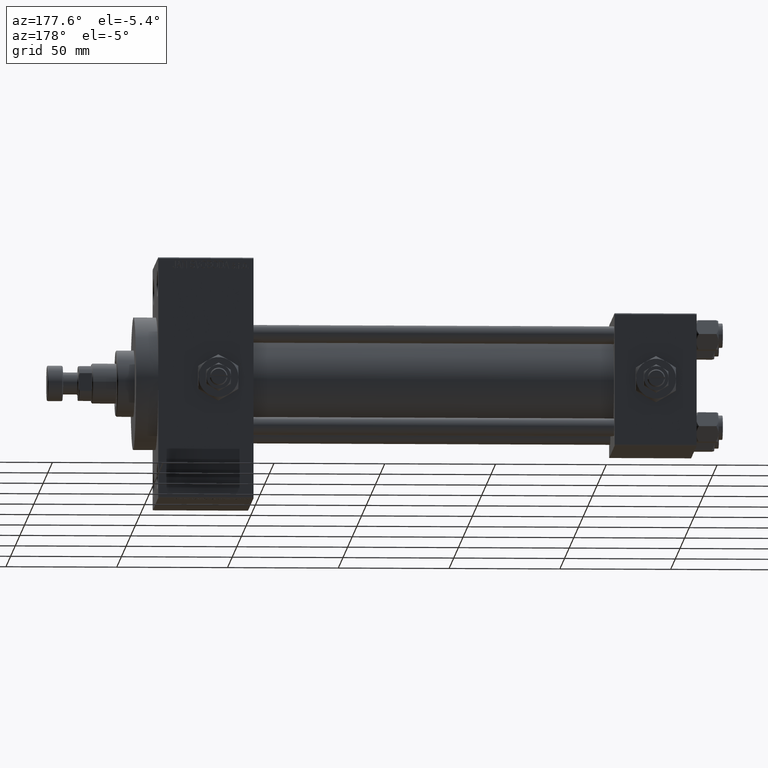
[diagram: clean part render]
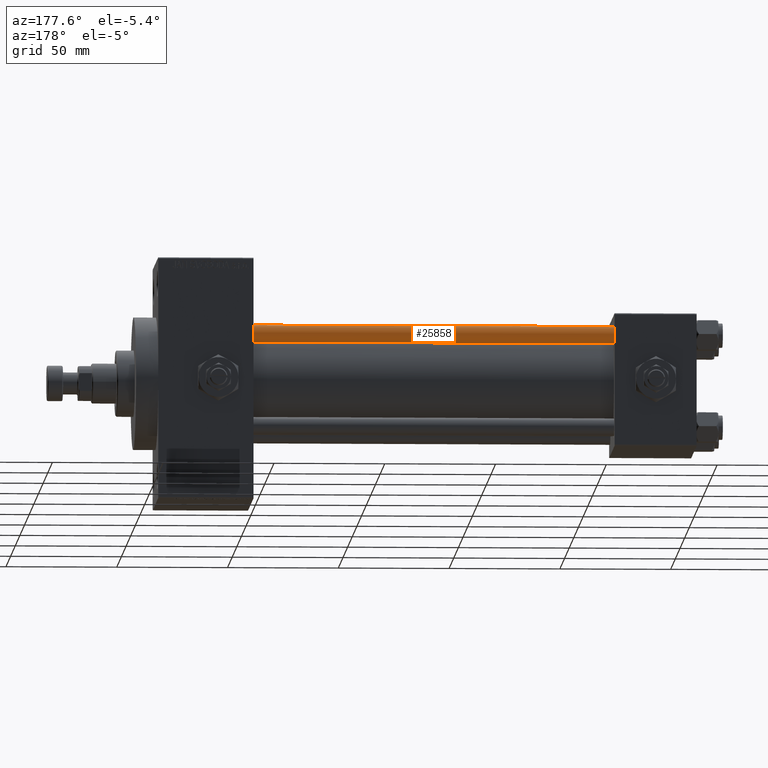
[diagram: same view with one face highlighted and labeled with its STEP entity id]
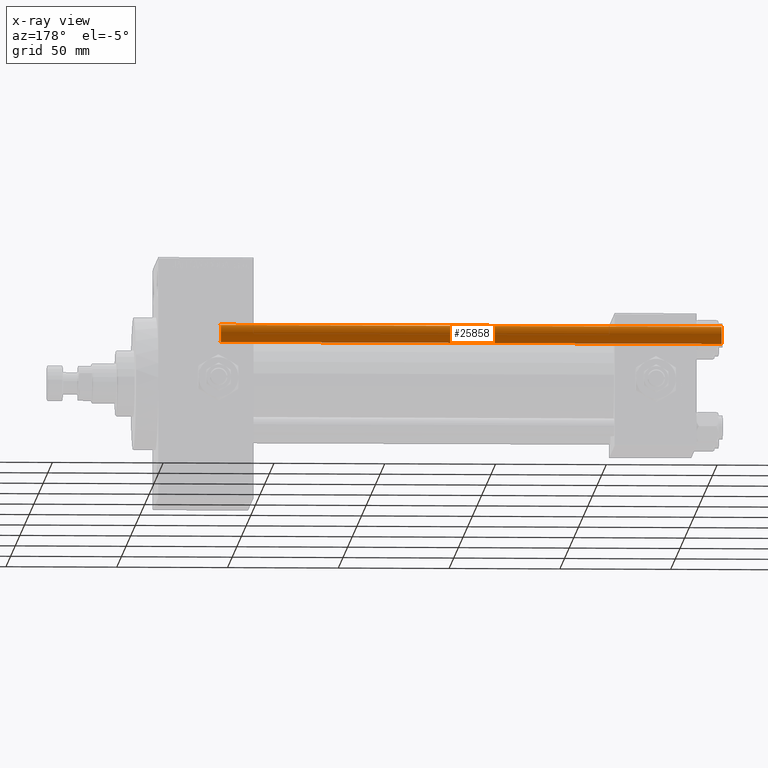
[diagram: x-ray of the same camera — body ghosted, the highlighted face saturated]
A machine part, auxiliary view. The second image highlights one B-rep face of the part: STEP entity #25858.
The next image is the same camera in x-ray: the body ghosted, the highlighted face saturated — about 0% of this face is hidden behind the body in this view.
In plain terms, the highlighted cylindrical surface (edge-blend (fillet) strip) has radius 4 mm, axis along (-1, -0, 0).
Its self-contained STEP definition (entity closure, byte-faithful):
#448 = EDGE_LOOP ( 'NONE', ( #15467, #35324, #43766, #27241 ) ) ;
#1921 = FACE_OUTER_BOUND ( 'NONE', #448, .T. ) ;
#2386 = LINE ( 'NONE', #14707, #40868 ) ;
#3695 = EDGE_CURVE ( 'NONE', #11700, #38206, #2386, .T. ) ;
#5003 = CARTESIAN_POINT ( 'NONE',  ( 0.000000000000000000, 0.000000000000000000, 0.5000000000002224887 ) ) ;
#9015 = DIRECTION ( 'NONE',  ( -0.000000000000000000, -0.000000000000000000, 1.000000000000000000 ) ) ;
#11700 = VERTEX_POINT ( 'NONE', #33463 ) ;
#14707 = CARTESIAN_POINT ( 'NONE',  ( -4.000000000000000000, 0.000000000000000000, 227.0000000000000000 ) ) ;
#15188 = VERTEX_POINT ( 'NONE', #40237 ) ;
#15467 = ORIENTED_EDGE ( 'NONE', *, *, #19456, .T. ) ;
#16744 = VERTEX_POINT ( 'NONE', #39579 ) ;
#16769 = CARTESIAN_POINT ( 'NONE',  ( 0.000000000000000000, 0.000000000000000000, 227.0000000000000000 ) ) ;
#18173 = LINE ( 'NONE', #34020, #22107 ) ;
#19456 = EDGE_CURVE ( 'NONE', #11700, #16744, #30873, .T. ) ;
#21519 = CYLINDRICAL_SURFACE ( 'NONE', #23856, 4.000000000000000000 ) ;
#22022 = AXIS2_PLACEMENT_3D ( 'NONE', #27232, #46583, #23458 ) ;
#22107 = VECTOR ( 'NONE', #26454, 1000.000000000000000 ) ;
#23458 = DIRECTION ( 'NONE',  ( 1.000000000000000000, 0.000000000000000000, 0.000000000000000000 ) ) ;
#23856 = AXIS2_PLACEMENT_3D ( 'NONE', #16769, #25285, #44147 ) ;
#24369 = DIRECTION ( 'NONE',  ( 1.000000000000000000, 0.000000000000000000, 0.000000000000000000 ) ) ;
#25285 = DIRECTION ( 'NONE',  ( -0.000000000000000000, -0.000000000000000000, -1.000000000000000000 ) ) ;
#25519 = EDGE_CURVE ( 'NONE', #15188, #38206, #32688, .T. ) ;
#25858 = ADVANCED_FACE ( 'NONE', ( #1921 ), #21519, .T. ) ;
#26454 = DIRECTION ( 'NONE',  ( -0.000000000000000000, -0.000000000000000000, -1.000000000000000000 ) ) ;
#27232 = CARTESIAN_POINT ( 'NONE',  ( 0.000000000000000000, 0.000000000000000000, 226.5000000000001421 ) ) ;
#27241 = ORIENTED_EDGE ( 'NONE', *, *, #3695, .F. ) ;
#30873 = CIRCLE ( 'NONE', #22022, 4.000000000000000000 ) ;
#31244 = CARTESIAN_POINT ( 'NONE',  ( -4.000000000000000000, 0.000000000000000000, 0.5000000000002224887 ) ) ;
#32688 = CIRCLE ( 'NONE', #37531, 4.000000000000000000 ) ;
#33463 = CARTESIAN_POINT ( 'NONE',  ( -4.000000000000000000, 0.000000000000000000, 226.5000000000001421 ) ) ;
#34020 = CARTESIAN_POINT ( 'NONE',  ( 4.000000000000000000, 4.898587196589411843E-16, 227.0000000000000000 ) ) ;
#35324 = ORIENTED_EDGE ( 'NONE', *, *, #42439, .T. ) ;
#37531 = AXIS2_PLACEMENT_3D ( 'NONE', #5003, #9015, #24369 ) ;
#38206 = VERTEX_POINT ( 'NONE', #31244 ) ;
#39579 = CARTESIAN_POINT ( 'NONE',  ( 4.000000000000000000, 4.898587196589411843E-16, 226.5000000000001421 ) ) ;
#40237 = CARTESIAN_POINT ( 'NONE',  ( 4.000000000000000000, 4.898587196589411843E-16, 0.5000000000002224887 ) ) ;
#40868 = VECTOR ( 'NONE', #45365, 1000.000000000000000 ) ;
#42439 = EDGE_CURVE ( 'NONE', #16744, #15188, #18173, .T. ) ;
#43766 = ORIENTED_EDGE ( 'NONE', *, *, #25519, .T. ) ;
#44147 = DIRECTION ( 'NONE',  ( -1.000000000000000000, 0.000000000000000000, 0.000000000000000000 ) ) ;
#45365 = DIRECTION ( 'NONE',  ( -0.000000000000000000, -0.000000000000000000, -1.000000000000000000 ) ) ;
#46583 = DIRECTION ( 'NONE',  ( 0.000000000000000000, 0.000000000000000000, -1.000000000000000000 ) ) ;